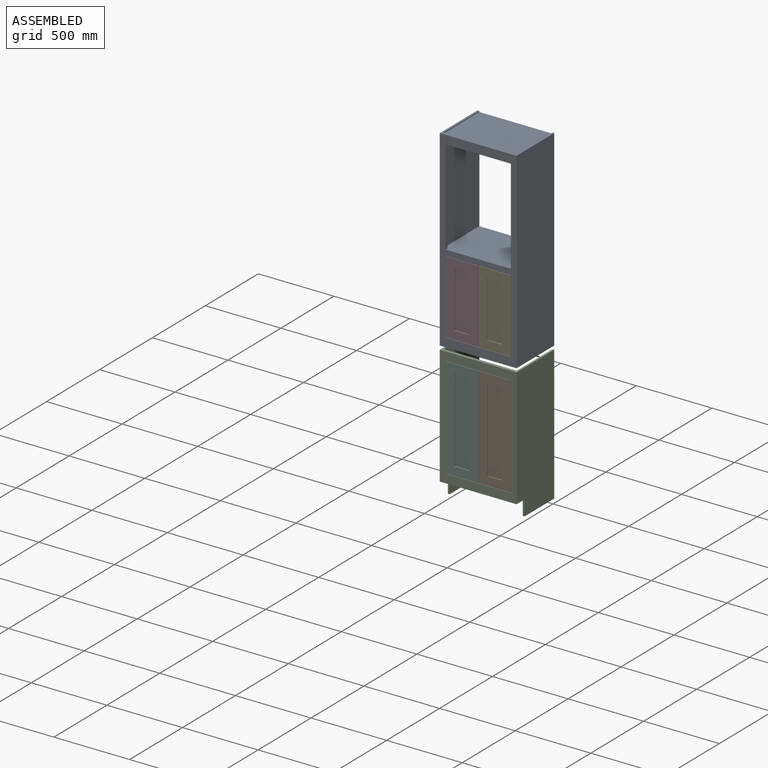
[diagram: assembled view]
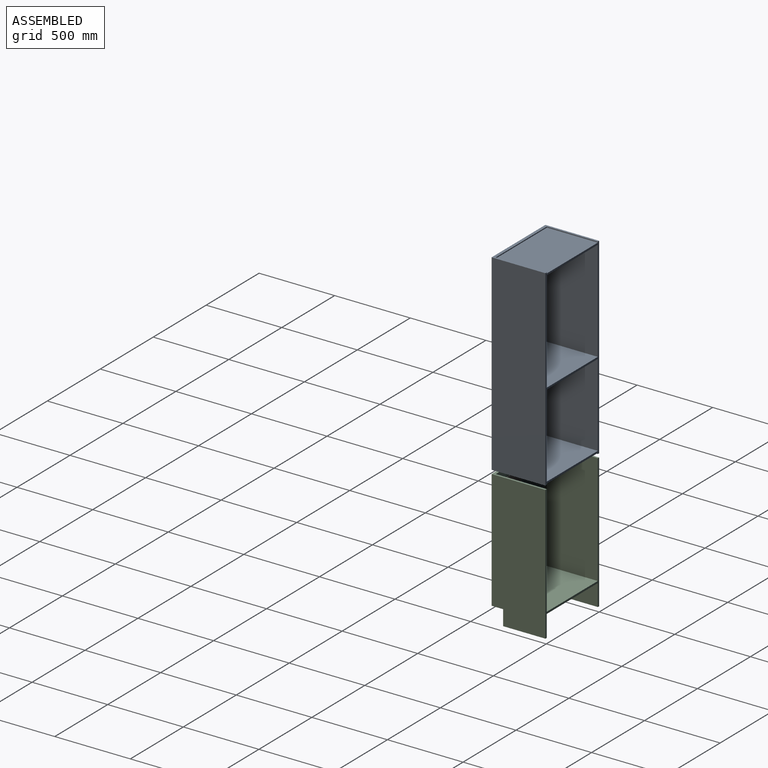
[diagram: assembled view, second angle]
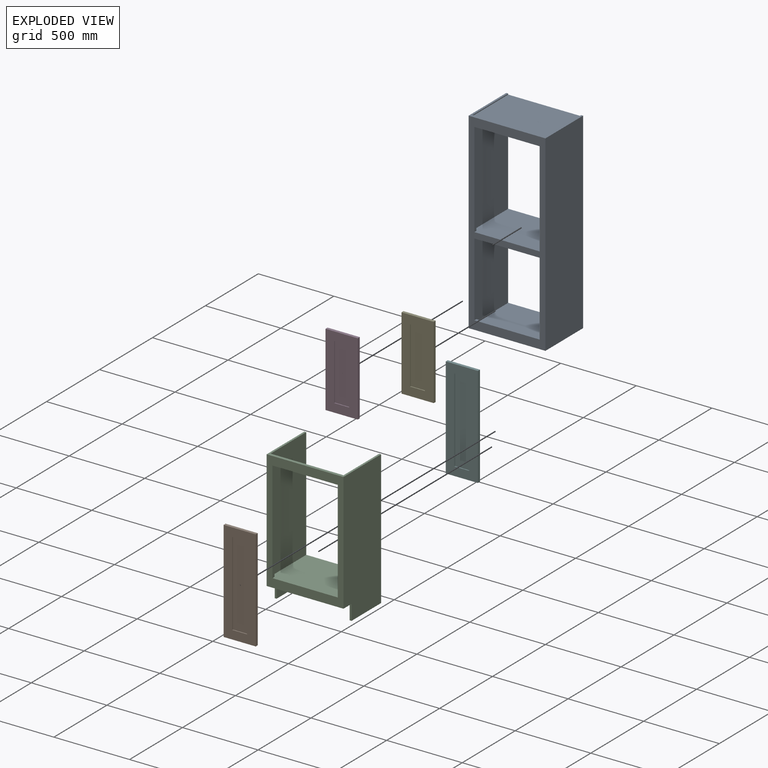
[diagram: exploded view]
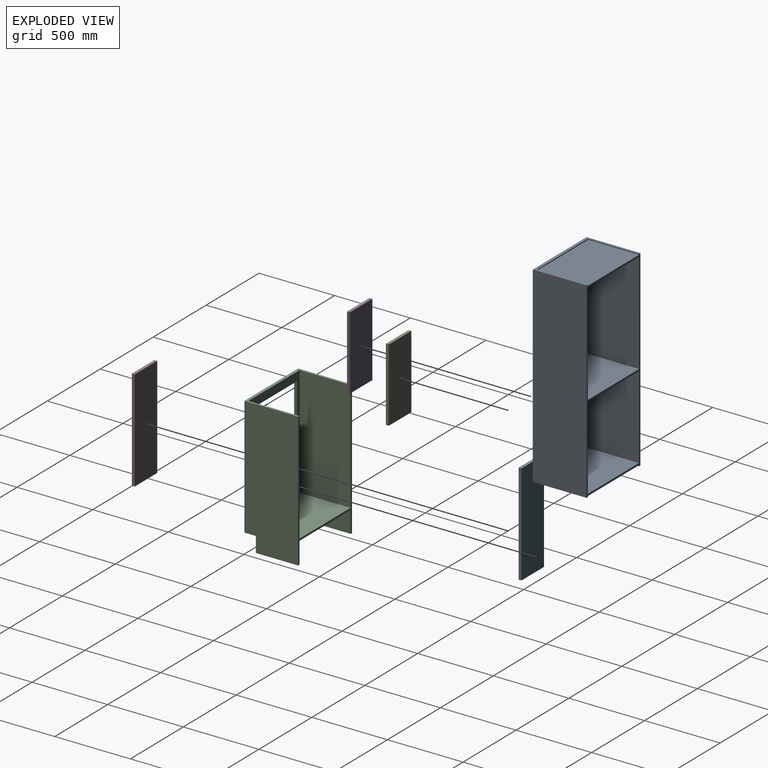
[diagram: exploded view, second angle]
ASSEMBLY  parts=6 mates=5
PART A: 32 faces, bbox 508x355.6x1270 mm
  f0: plane 549.28x482.6mm, normal (0,1,0), area 53951.5mm2, adj f9,f10,f11,f13,f27,f28,f29,f31
  f1: plane 482.6x6.35mm, normal (0,1,0), area 3064.5mm2, adj f3,f21,f22,f23
  f2: plane 669.93x482.6mm, normal (0,1,0), area 51854.7mm2, adj f6,f7,f8,f12,f24,f25,f26,f30
  f3: plane 508x355.6mm, normal (0,0,1), area 18225.8mm2, adj f1,f4,f14,f16,f17,f21,f23
  f4: plane 1270x355.6mm, normal (-1,0,0), area 451612mm2, adj f3,f5,f16,f17
  f5: plane 508x355.6mm, normal (0,0,-1), area 18225.8mm2, adj f4,f14,f15,f16,f17,f18,f20
  f6: plane 628.65x19.05mm, normal (1,0,0), area 11975.8mm2, adj f2,f7,f12,f16
  f7: plane 431.8x19.05mm, normal (0,0,-1), area 8225.8mm2, adj f2,f6,f8,f16
  f8: plane 628.65x19.05mm, normal (-1,0,0), area 11975.8mm2, adj f2,f7,f12,f16
  f9: plane 488.95x19.05mm, normal (1,0,0), area 9314.5mm2, adj f0,f10,f13,f16
  f10: plane 431.8x19.05mm, normal (0,0,-1), area 8225.8mm2, adj f0,f9,f11,f16
  f11: plane 488.95x19.05mm, normal (-1,0,0), area 9314.5mm2, adj f0,f10,f13,f16
  f12: plane 431.8x19.05mm, normal (0,0,1), area 8225.8mm2, adj f2,f6,f8,f16
  f13: plane 431.8x19.05mm, normal (0,0,1), area 8225.8mm2, adj f0,f9,f11,f16
  f14: plane 1270x355.6mm, normal (1,0,0), area 451612mm2, adj f3,f5,f16,f17
  f15: plane 482.6x6.35mm, normal (0,1,0), area 3064.5mm2, adj f5,f18,f19,f20
  f16: plane 1270x508mm, normal (0,-1,0), area 162580.3mm2, adj f3,f4,f5,f6,f7,f8,f9,f10
  f17: plane 1270x508mm, normal (0,1,0), area 50645.1mm2, adj f3,f4,f5,f14,f18,f19,f20,f21
  f18: plane 336.55x6.35mm, normal (-1,0,0), area 2137.1mm2, adj f5,f15,f17,f19
  f19: plane 482.6x336.55mm, normal (0,0,-1), area 162419mm2, adj f15,f17,f18,f20
  f20: plane 336.55x6.35mm, normal (1,0,0), area 2137.1mm2, adj f5,f15,f17,f19
  f21: plane 336.55x6.35mm, normal (1,0,0), area 2137.1mm2, adj f1,f3,f17,f22
  f22: plane 482.6x336.55mm, normal (0,0,1), area 162419mm2, adj f1,f17,f21,f23
  f23: plane 336.55x6.35mm, normal (-1,0,0), area 2137.1mm2, adj f1,f3,f17,f22
  f24: plane 669.93x336.55mm, normal (1,0,0), area 225463.3mm2, adj f2,f17,f25,f30
  f25: plane 482.6x336.55mm, normal (0,0,1), area 162419mm2, adj f2,f17,f24,f26
  f26: plane 669.93x336.55mm, normal (-1,0,0), area 225463.3mm2, adj f2,f17,f25,f30
  f27: plane 549.28x336.55mm, normal (1,0,0), area 184858.5mm2, adj f0,f17,f28,f31
  f28: plane 482.6x336.55mm, normal (0,0,1), area 162419mm2, adj f0,f17,f27,f29
  f29: plane 549.28x336.55mm, normal (-1,0,0), area 184858.5mm2, adj f0,f17,f28,f31
  f30: plane 482.6x336.55mm, normal (0,0,-1), area 162419mm2, adj f2,f17,f24,f26
  f31: plane 482.6x336.55mm, normal (0,0,-1), area 162419mm2, adj f0,f17,f27,f29
PART B: 11 faces, bbox 212.7x19.1x669.9 mm
  f0: plane 669.93x212.73mm, normal (0,-1,0), area 87822.4mm2, adj f1,f2,f3,f4,f6,f7,f8,f9
  f1: plane 212.73x19.05mm, normal (0,0,1), area 4052.4mm2, adj f0,f2,f4,f5
  f2: plane 669.93x19.05mm, normal (-1,0,0), area 12762.1mm2, adj f0,f1,f3,f5
  f3: plane 212.73x19.05mm, normal (0,0,-1), area 4052.4mm2, adj f0,f2,f4,f5
  f4: plane 669.93x19.05mm, normal (1,0,0), area 12762.1mm2, adj f0,f1,f3,f5
  f5: plane 669.93x212.73mm, normal (0,1,0), area 142509.8mm2, adj f1,f2,f3,f4
  f6: plane 98.43x6.35mm, normal (0,0,-1), area 625mm2, adj f0,f7,f9,f10
  f7: plane 555.63x6.35mm, normal (1,0,0), area 3528.2mm2, adj f0,f6,f8,f10
  f8: plane 98.43x6.35mm, normal (0,0,1), area 625mm2, adj f0,f7,f9,f10
  f9: plane 555.63x6.35mm, normal (-1,0,0), area 3528.2mm2, adj f0,f6,f8,f10
  f10: plane 555.63x98.43mm, normal (0,-1,0), area 54687.4mm2, adj f6,f7,f8,f9
PART C: 22 faces, bbox 508x355.6x889 mm
  f0: plane 889x355.6mm, normal (-1,0,0), area 308386.5mm2, adj f4,f5,f12,f13,f19,f20
  f1: plane 336.55x142.88mm, normal (-1,0,0), area 42278.1mm2, adj f3,f5,f13,f17,f18,f21
  f2: plane 336.55x142.88mm, normal (1,0,0), area 42278.1mm2, adj f3,f5,f13,f18,f19,f20
  f3: plane 482.6x41.28mm, normal (0,1,0), area 19919.3mm2, adj f1,f2,f5,f18
  f4: plane 508x355.6mm, normal (0,0,1), area 18225.8mm2, adj f0,f10,f11,f12,f13,f14,f16
  f5: plane 508x76.2mm, normal (0,0,-1), area 11129mm2, adj f0,f1,f2,f3,f10,f12,f20,f21
  f6: plane 673.1x19.05mm, normal (1,0,0), area 12822.6mm2, adj f7,f9,f11,f12
  f7: plane 431.8x19.05mm, normal (0,0,-1), area 8225.8mm2, adj f6,f8,f11,f12
  f8: plane 673.1x19.05mm, normal (-1,0,0), area 12822.6mm2, adj f7,f9,f11,f12
  f9: plane 431.8x19.05mm, normal (0,0,1), area 8225.8mm2, adj f6,f8,f11,f12
  f10: plane 889x355.6mm, normal (1,0,0), area 308386.5mm2, adj f4,f5,f12,f13,f17,f21
  f11: plane 733.43x482.6mm, normal (0,1,0), area 63306.3mm2, adj f4,f6,f7,f8,f9,f14,f15,f16
  f12: plane 787.4x508mm, normal (0,-1,0), area 109354.6mm2, adj f0,f4,f5,f6,f7,f8,f9,f10
  f13: plane 889x508mm, normal (0,1,0), area 28709.6mm2, adj f0,f1,f2,f4,f10,f14,f15,f16
  f14: plane 733.43x336.55mm, normal (1,0,0), area 246834.2mm2, adj f4,f11,f13,f15
  f15: plane 482.6x336.55mm, normal (0,0,1), area 162419mm2, adj f11,f13,f14,f16
  f16: plane 733.43x336.55mm, normal (-1,0,0), area 246834.2mm2, adj f4,f11,f13,f15
  f17: plane 279.4x12.7mm, normal (0,0,-1), area 3548.4mm2, adj f1,f10,f13,f21
  f18: plane 482.6x336.55mm, normal (0,0,-1), area 162419mm2, adj f1,f2,f3,f13
  f19: plane 279.4x12.7mm, normal (0,0,-1), area 3548.4mm2, adj f0,f2,f13,f20
  f20: plane 101.6x12.7mm, normal (0,-1,0), area 1290.3mm2, adj f0,f2,f5,f19
  f21: plane 101.6x12.7mm, normal (0,-1,0), area 1290.3mm2, adj f1,f5,f10,f17
PART D: 11 faces, bbox 212.7x19.1x485.8 mm
  f0: plane 485.78x212.73mm, normal (0,-1,0), area 66774.1mm2, adj f1,f2,f3,f4,f6,f7,f8,f9
  f1: plane 212.73x19.05mm, normal (0,0,1), area 4052.4mm2, adj f0,f2,f4,f5
  f2: plane 485.78x19.05mm, normal (-1,0,0), area 9254mm2, adj f0,f1,f3,f5
  f3: plane 212.73x19.05mm, normal (0,0,-1), area 4052.4mm2, adj f0,f2,f4,f5
  f4: plane 485.78x19.05mm, normal (1,0,0), area 9254mm2, adj f0,f1,f3,f5
  f5: plane 485.78x212.73mm, normal (0,1,0), area 103336.5mm2, adj f1,f2,f3,f4
  f6: plane 98.43x6.35mm, normal (0,0,-1), area 625mm2, adj f0,f7,f9,f10
  f7: plane 371.48x6.35mm, normal (1,0,0), area 2358.9mm2, adj f0,f6,f8,f10
  f8: plane 98.43x6.35mm, normal (0,0,1), area 625mm2, adj f0,f7,f9,f10
  f9: plane 371.48x6.35mm, normal (-1,0,0), area 2358.9mm2, adj f0,f6,f8,f10
  f10: plane 371.48x98.43mm, normal (0,-1,0), area 36562.4mm2, adj f6,f7,f8,f9
PART E: same geometry as D
PART F: same geometry as B
PLACE A at identity
PLACE B t=(215.9,0,0)mm
PLACE C at identity fixed
PLACE D at identity
PLACE E t=(215.9,0,0)mm
PLACE F at identity
MATE fastened A.f16 <-> E.f0  axis (0,-1,0) through (469.9,-355.6,1460.5)mm
MATE fastened C.f12 <-> A.f16  axis (0,-1,0) through (0,-355.6,889)mm
MATE fastened C.f12 <-> F.f0  axis (0,-1,0) through (38.1,-355.6,831.85)mm
MATE fastened A.f16 <-> D.f0  axis (0,-1,0) through (38.1,-355.6,1460.5)mm
MATE fastened C.f12 <-> B.f0  axis (0,-1,0) through (469.9,-355.6,831.85)mm
